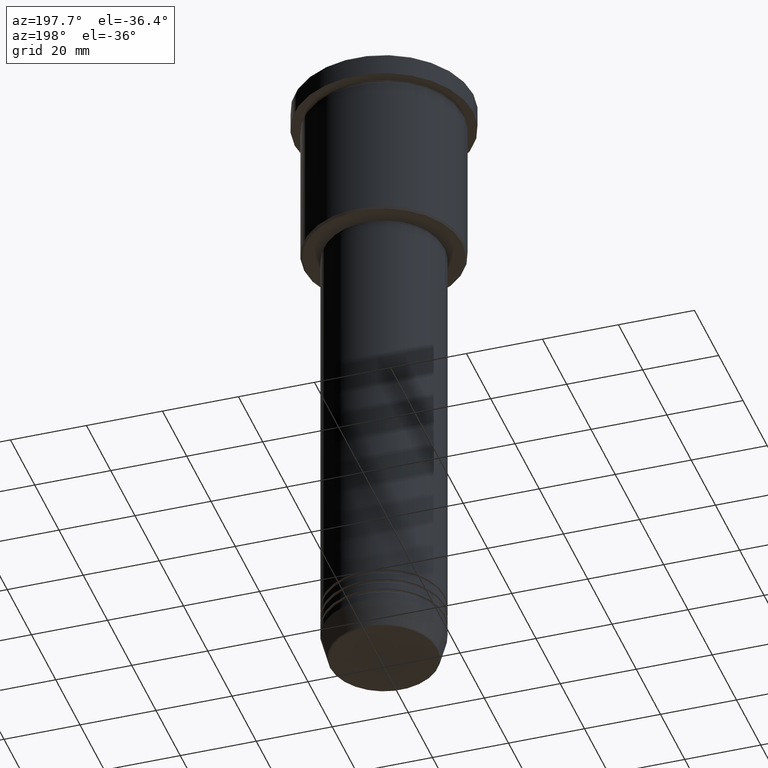
[diagram: clean part render]
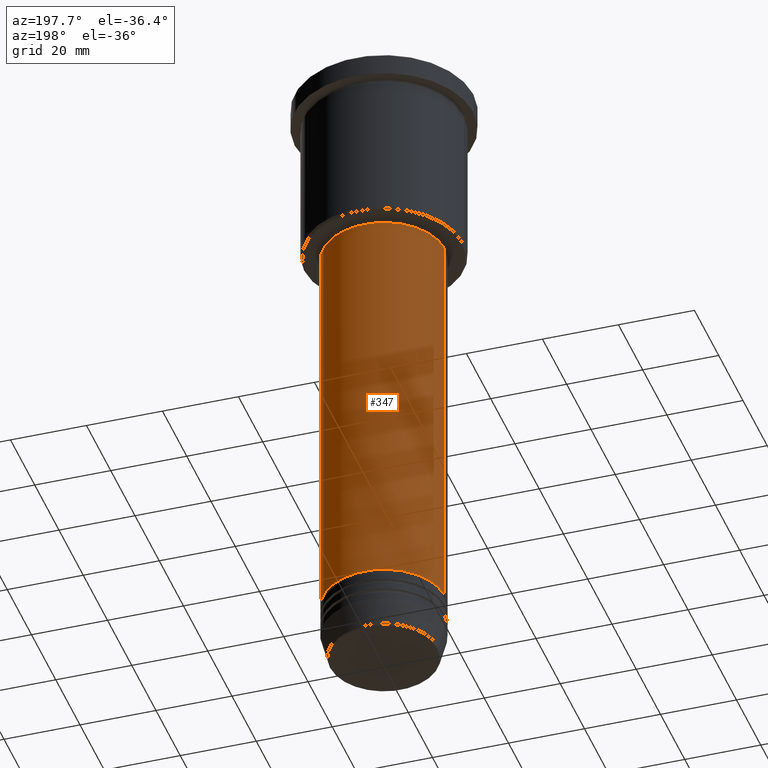
[diagram: same view with one face highlighted and labeled with its STEP entity id]
A machine part, auxiliary view. The second image highlights one B-rep face of the part: STEP entity #347.
In plain terms, the highlighted cylindrical surface (partial cylindrical patch) has radius 16 mm, axis along (-0, -0, 1).
Its self-contained STEP definition (entity closure, byte-faithful):
#52 = LINE ( 'NONE', #1128, #327 ) ;
#78 = VECTOR ( 'NONE', #985, 1000.000000000000000 ) ;
#92 = CYLINDRICAL_SURFACE ( 'NONE', #433, 16.00000000000000000 ) ;
#142 = EDGE_CURVE ( 'NONE', #1123, #242, #52, .T. ) ;
#146 = CARTESIAN_POINT ( 'NONE',  ( 0.000000000000000000, 0.000000000000000000, 0.000000000000000000 ) ) ;
#152 = CARTESIAN_POINT ( 'NONE',  ( 0.000000000000000000, 0.000000000000000000, -47.00000000000000711 ) ) ;
#172 = ORIENTED_EDGE ( 'NONE', *, *, #716, .T. ) ;
#187 = AXIS2_PLACEMENT_3D ( 'NONE', #152, #687, #235 ) ;
#205 = ORIENTED_EDGE ( 'NONE', *, *, #373, .T. ) ;
#235 = DIRECTION ( 'NONE',  ( 1.000000000000000000, 0.000000000000000000, 0.000000000000000000 ) ) ;
#237 = LINE ( 'NONE', #604, #78 ) ;
#242 = VERTEX_POINT ( 'NONE', #508 ) ;
#243 = CIRCLE ( 'NONE', #651, 16.00000000000000000 ) ;
#317 = DIRECTION ( 'NONE',  ( -0.000000000000000000, -0.000000000000000000, 1.000000000000000000 ) ) ;
#327 = VECTOR ( 'NONE', #764, 1000.000000000000000 ) ;
#333 = ORIENTED_EDGE ( 'NONE', *, *, #962, .F. ) ;
#337 = CARTESIAN_POINT ( 'NONE',  ( -16.00000000000000000, 1.959434878635765131E-15, -154.9999999999999716 ) ) ;
#347 = ADVANCED_FACE ( 'NONE', ( #416 ), #92, .T. ) ;
#373 = EDGE_CURVE ( 'NONE', #945, #891, #237, .T. ) ;
#392 = CARTESIAN_POINT ( 'NONE',  ( 0.000000000000000000, 0.000000000000000000, -154.9999999999999716 ) ) ;
#416 = FACE_OUTER_BOUND ( 'NONE', #900, .T. ) ;
#433 = AXIS2_PLACEMENT_3D ( 'NONE', #146, #994, #726 ) ;
#508 = CARTESIAN_POINT ( 'NONE',  ( 16.00000000000000000, 0.000000000000000000, -47.00000000000000711 ) ) ;
#604 = CARTESIAN_POINT ( 'NONE',  ( -16.00000000000000000, 1.959434878635765131E-15, 0.000000000000000000 ) ) ;
#620 = CARTESIAN_POINT ( 'NONE',  ( -16.00000000000000000, 1.959434878635765131E-15, -47.00000000000000711 ) ) ;
#651 = AXIS2_PLACEMENT_3D ( 'NONE', #392, #317, #755 ) ;
#687 = DIRECTION ( 'NONE',  ( -0.000000000000000000, -0.000000000000000000, 1.000000000000000000 ) ) ;
#716 = EDGE_CURVE ( 'NONE', #1123, #945, #243, .T. ) ;
#726 = DIRECTION ( 'NONE',  ( 1.000000000000000000, 0.000000000000000000, 0.000000000000000000 ) ) ;
#755 = DIRECTION ( 'NONE',  ( 1.000000000000000000, 0.000000000000000000, 0.000000000000000000 ) ) ;
#764 = DIRECTION ( 'NONE',  ( -0.000000000000000000, -0.000000000000000000, 1.000000000000000000 ) ) ;
#880 = ORIENTED_EDGE ( 'NONE', *, *, #142, .F. ) ;
#891 = VERTEX_POINT ( 'NONE', #620 ) ;
#900 = EDGE_LOOP ( 'NONE', ( #172, #205, #333, #880 ) ) ;
#945 = VERTEX_POINT ( 'NONE', #337 ) ;
#962 = EDGE_CURVE ( 'NONE', #242, #891, #1051, .T. ) ;
#985 = DIRECTION ( 'NONE',  ( -0.000000000000000000, -0.000000000000000000, 1.000000000000000000 ) ) ;
#994 = DIRECTION ( 'NONE',  ( -0.000000000000000000, -0.000000000000000000, 1.000000000000000000 ) ) ;
#1022 = CARTESIAN_POINT ( 'NONE',  ( 16.00000000000000000, 0.000000000000000000, -154.9999999999999716 ) ) ;
#1051 = CIRCLE ( 'NONE', #187, 16.00000000000000000 ) ;
#1123 = VERTEX_POINT ( 'NONE', #1022 ) ;
#1128 = CARTESIAN_POINT ( 'NONE',  ( 16.00000000000000000, 0.000000000000000000, 0.000000000000000000 ) ) ;